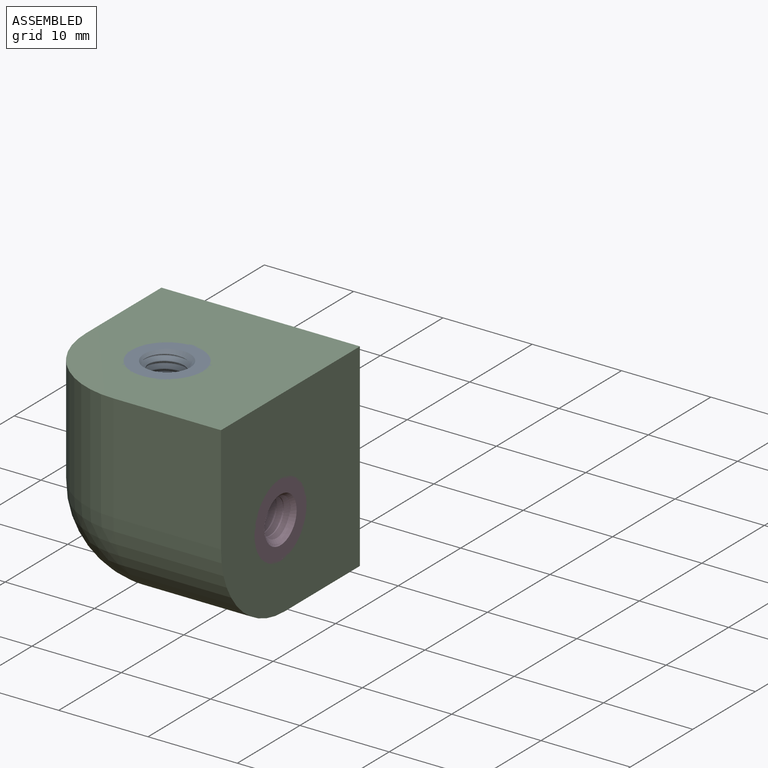
[diagram: assembled view]
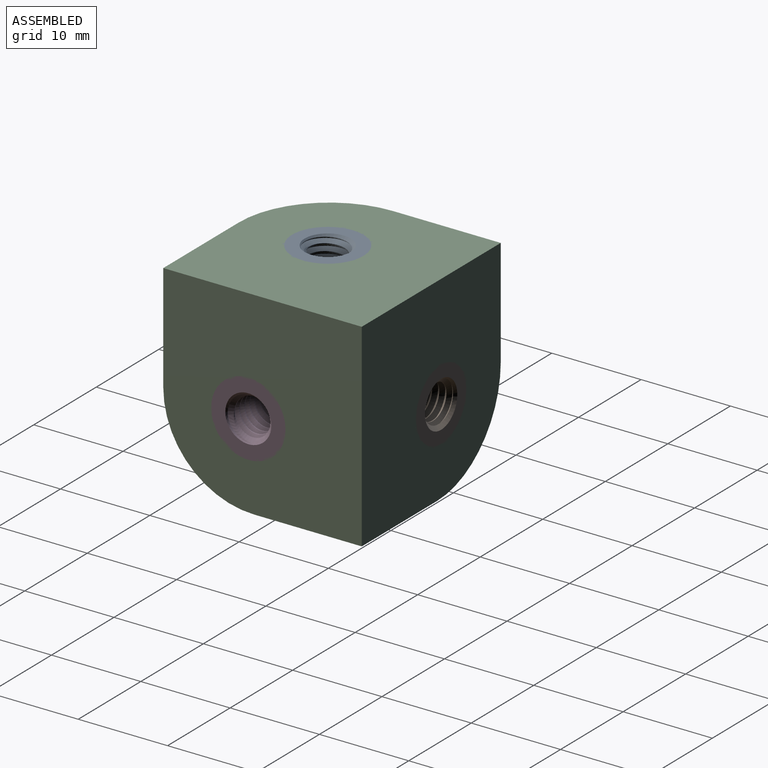
[diagram: assembled view, second angle]
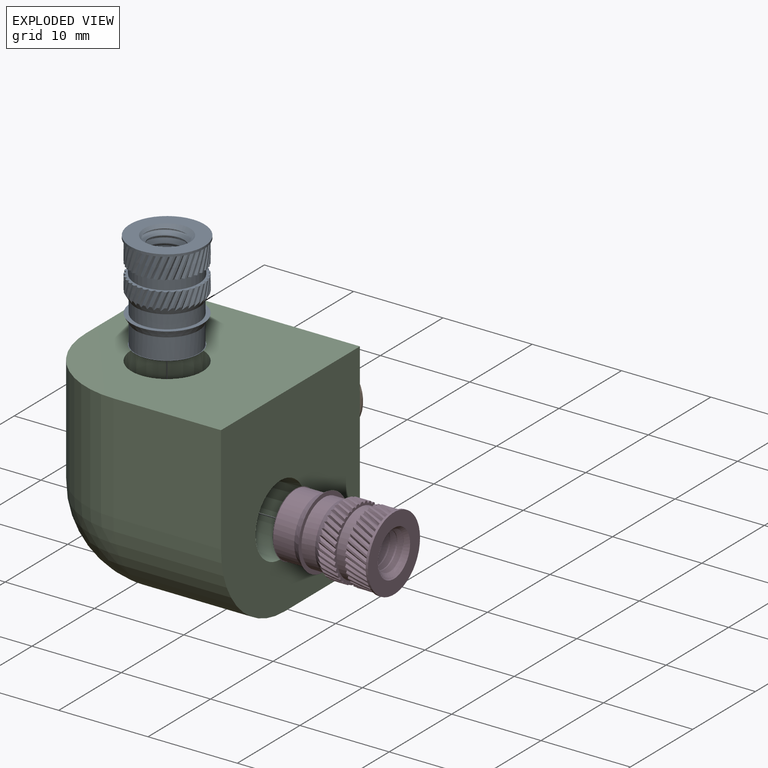
[diagram: exploded view]
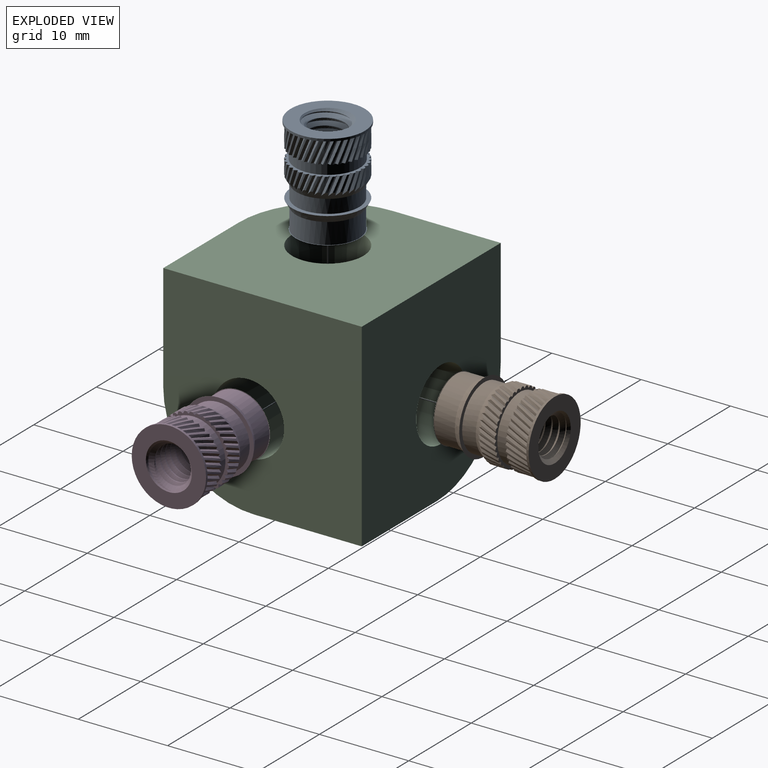
[diagram: exploded view, second angle]
ASSEMBLY  parts=4 mates=3
PART A: 237 faces, bbox 8.3x11.8x8.3 mm
  f0: cylinder r=4mm len=1.64mm, axis (0,1,0), area 0.4mm2, adj f37,f106,f152,f234
  f1: cylinder r=4mm len=1.64mm, axis (0,1,0), area 0.4mm2, adj f104,f107,f152,f234
  f2: cylinder r=4mm len=1.64mm, axis (0,1,0), area 0.4mm2, adj f102,f105,f152,f234
  f3: cylinder r=4mm len=1.64mm, axis (0,1,0), area 0.4mm2, adj f100,f103,f152,f234
  f4: cylinder r=4mm len=1.64mm, axis (0,1,0), area 0.4mm2, adj f98,f101,f152,f234
  f5: cylinder r=4mm len=1.64mm, axis (0,1,0), area 0.4mm2, adj f96,f99,f152,f234
  f6: cylinder r=4mm len=1.64mm, axis (0,1,0), area 0.4mm2, adj f94,f97,f152,f234
  f7: cylinder r=4mm len=1.64mm, axis (0,1,0), area 0.4mm2, adj f92,f95,f152,f234
  f8: cylinder r=4mm len=1.64mm, axis (0,1,0), area 0.4mm2, adj f90,f93,f152,f234
  f9: cylinder r=4mm len=1.64mm, axis (0,1,0), area 0.4mm2, adj f88,f91,f152,f234
  f10: cylinder r=4mm len=1.64mm, axis (0,1,0), area 0.4mm2, adj f86,f89,f152,f234
  f11: cylinder r=4mm len=1.64mm, axis (0,1,0), area 0.4mm2, adj f84,f87,f152,f234
  f12: cylinder r=4mm len=1.64mm, axis (0,1,0), area 0.4mm2, adj f82,f85,f152,f234
  f13: cylinder r=4mm len=1.64mm, axis (0,1,0), area 0.4mm2, adj f80,f83,f152,f234
  f14: cylinder r=4mm len=1.64mm, axis (0,1,0), area 0.4mm2, adj f78,f81,f152,f234
  f15: cylinder r=4mm len=1.64mm, axis (0,1,0), area 0.4mm2, adj f76,f79,f152,f234
  f16: cylinder r=4mm len=1.64mm, axis (0,1,0), area 0.4mm2, adj f74,f77,f152,f234
  f17: cylinder r=4mm len=1.64mm, axis (0,1,0), area 0.4mm2, adj f72,f75,f152,f234
  f18: cylinder r=4mm len=1.64mm, axis (0,1,0), area 0.4mm2, adj f70,f73,f152,f234
  f19: cylinder r=4mm len=1.64mm, axis (0,1,0), area 0.4mm2, adj f68,f71,f152,f234
  f20: cylinder r=4mm len=1.64mm, axis (0,1,0), area 0.4mm2, adj f66,f69,f152,f234
  f21: cylinder r=4mm len=1.64mm, axis (0,1,0), area 0.4mm2, adj f64,f67,f152,f234
  f22: cylinder r=4mm len=1.64mm, axis (0,1,0), area 0.4mm2, adj f62,f65,f152,f234
  f23: cylinder r=4mm len=1.64mm, axis (0,1,0), area 0.4mm2, adj f60,f63,f152,f234
  f24: cylinder r=4mm len=1.64mm, axis (0,1,0), area 0.4mm2, adj f58,f61,f152,f234
  f25: cylinder r=4mm len=1.64mm, axis (0,1,0), area 0.4mm2, adj f56,f59,f152,f234
  f26: cylinder r=4mm len=1.64mm, axis (0,1,0), area 0.4mm2, adj f54,f57,f152,f234
  f27: cylinder r=4mm len=1.64mm, axis (0,1,0), area 0.4mm2, adj f52,f55,f152,f234
  f28: cylinder r=4mm len=1.64mm, axis (0,1,0), area 0.4mm2, adj f50,f53,f152,f234
  f29: cylinder r=4mm len=1.64mm, axis (0,1,0), area 0.4mm2, adj f48,f51,f152,f234
  f30: cylinder r=4mm len=1.64mm, axis (0,1,0), area 0.4mm2, adj f46,f49,f152,f234
  f31: cylinder r=4mm len=1.64mm, axis (0,1,0), area 0.4mm2, adj f44,f47,f152,f234
  f32: cylinder r=4mm len=1.64mm, axis (0,1,0), area 0.4mm2, adj f42,f45,f152,f234
  f33: cylinder r=4mm len=1.64mm, axis (0,1,0), area 0.4mm2, adj f40,f43,f152,f234
  f34: cylinder r=4mm len=1.64mm, axis (0,1,0), area 0.4mm2, adj f38,f41,f152,f234
  f35: cylinder r=4mm len=1.64mm, axis (0,1,0), area 0.4mm2, adj f36,f39,f152,f234
  f36: bspline ~3.85x1.55mm, area 0.6mm2, adj f35,f37,f152,f234
  f37: bspline ~3.85x1.7mm, area 0.6mm2, adj f0,f36,f152,f234
  f38: bspline ~3.85x1.69mm, area 0.6mm2, adj f34,f39,f152,f234
  f39: bspline ~3.85x1.78mm, area 0.6mm2, adj f35,f38,f152,f234
  f40: bspline ~2.05x1.02mm, area 0.6mm2, adj f33,f41,f152,f234
  f41: bspline ~3.85x1.8mm, area 0.6mm2, adj f34,f40,f152,f234
  f42: bspline ~3.85x1.8mm, area 0.6mm2, adj f32,f43,f152,f234
  f43: bspline ~3.85x1.76mm, area 0.6mm2, adj f33,f42,f152,f234
  f44: bspline ~3.85x1.77mm, area 0.6mm2, adj f31,f45,f152,f234
  f45: bspline ~3.85x1.67mm, area 0.6mm2, adj f32,f44,f152,f234
  f46: bspline ~3.85x1.69mm, area 0.6mm2, adj f30,f47,f152,f234
  f47: bspline ~3.85x1.53mm, area 0.6mm2, adj f31,f46,f152,f234
  f48: bspline ~3.85x1.56mm, area 0.6mm2, adj f29,f49,f152,f234
  f49: bspline ~3.85x1.36mm, area 0.6mm2, adj f30,f48,f152,f234
  f50: bspline ~2.05x0.92mm, area 0.6mm2, adj f28,f51,f152,f234
  f51: bspline ~3.85x1.4mm, area 0.6mm2, adj f29,f50,f152,f234
  f52: bspline ~3.85x1.38mm, area 0.6mm2, adj f27,f53,f152,f234
  f53: bspline ~3.85x1.58mm, area 0.6mm2, adj f28,f52,f152,f234
  f54: bspline ~3.85x1.55mm, area 0.6mm2, adj f26,f55,f152,f234
  f55: bspline ~3.85x1.7mm, area 0.6mm2, adj f27,f54,f152,f234
  f56: bspline ~3.85x1.69mm, area 0.6mm2, adj f25,f57,f152,f234
  f57: bspline ~3.85x1.78mm, area 0.6mm2, adj f26,f56,f152,f234
  f58: bspline ~2.05x1.02mm, area 0.6mm2, adj f24,f59,f152,f234
  f59: bspline ~3.85x1.8mm, area 0.6mm2, adj f25,f58,f152,f234
  f60: bspline ~3.85x1.8mm, area 0.6mm2, adj f23,f61,f152,f234
  f61: bspline ~3.85x1.76mm, area 0.6mm2, adj f24,f60,f152,f234
  f62: bspline ~3.85x1.77mm, area 0.6mm2, adj f22,f63,f152,f234
  f63: bspline ~3.85x1.67mm, area 0.6mm2, adj f23,f62,f152,f234
  f64: bspline ~3.85x1.69mm, area 0.6mm2, adj f21,f65,f152,f234
  f65: bspline ~3.85x1.53mm, area 0.6mm2, adj f22,f64,f152,f234
  f66: bspline ~3.85x1.56mm, area 0.6mm2, adj f20,f67,f152,f234
  f67: bspline ~3.85x1.36mm, area 0.6mm2, adj f21,f66,f152,f234
  f68: bspline ~2.05x0.92mm, area 0.6mm2, adj f19,f69,f152,f234
  f69: bspline ~3.85x1.4mm, area 0.6mm2, adj f20,f68,f152,f234
  f70: bspline ~3.85x1.38mm, area 0.6mm2, adj f18,f71,f152,f234
  f71: bspline ~3.85x1.58mm, area 0.6mm2, adj f19,f70,f152,f234
  f72: bspline ~3.85x1.55mm, area 0.6mm2, adj f17,f73,f152,f234
  f73: bspline ~3.85x1.7mm, area 0.6mm2, adj f18,f72,f152,f234
  f74: bspline ~3.85x1.69mm, area 0.6mm2, adj f16,f75,f152,f234
  f75: bspline ~3.85x1.78mm, area 0.6mm2, adj f17,f74,f152,f234
  f76: bspline ~2.05x1.02mm, area 0.6mm2, adj f15,f77,f152,f234
  f77: bspline ~3.85x1.8mm, area 0.6mm2, adj f16,f76,f152,f234
  f78: bspline ~3.85x1.8mm, area 0.6mm2, adj f14,f79,f152,f234
  f79: bspline ~3.85x1.76mm, area 0.6mm2, adj f15,f78,f152,f234
  f80: bspline ~3.85x1.77mm, area 0.6mm2, adj f13,f81,f152,f234
  f81: bspline ~3.85x1.67mm, area 0.6mm2, adj f14,f80,f152,f234
  f82: bspline ~3.85x1.69mm, area 0.6mm2, adj f12,f83,f152,f234
  f83: bspline ~3.85x1.53mm, area 0.6mm2, adj f13,f82,f152,f234
  f84: bspline ~3.85x1.56mm, area 0.6mm2, adj f11,f85,f152,f234
  f85: bspline ~3.85x1.36mm, area 0.6mm2, adj f12,f84,f152,f234
  f86: bspline ~2.05x0.92mm, area 0.6mm2, adj f10,f87,f152,f234
  f87: bspline ~3.85x1.4mm, area 0.6mm2, adj f11,f86,f152,f234
  f88: bspline ~3.85x1.38mm, area 0.6mm2, adj f9,f89,f152,f234
  f89: bspline ~3.85x1.58mm, area 0.6mm2, adj f10,f88,f152,f234
  f90: bspline ~3.85x1.55mm, area 0.6mm2, adj f8,f91,f152,f234
  f91: bspline ~3.85x1.7mm, area 0.6mm2, adj f9,f90,f152,f234
  f92: bspline ~3.85x1.69mm, area 0.6mm2, adj f7,f93,f152,f234
  f93: bspline ~3.85x1.78mm, area 0.6mm2, adj f8,f92,f152,f234
  f94: bspline ~2.05x1.02mm, area 0.6mm2, adj f6,f95,f152,f234
  f95: bspline ~3.85x1.8mm, area 0.6mm2, adj f7,f94,f152,f234
  f96: bspline ~3.85x1.8mm, area 0.6mm2, adj f5,f97,f152,f234
  f97: bspline ~3.85x1.76mm, area 0.6mm2, adj f6,f96,f152,f234
  f98: bspline ~3.85x1.77mm, area 0.6mm2, adj f4,f99,f152,f234
  f99: bspline ~3.85x1.67mm, area 0.6mm2, adj f5,f98,f152,f234
  f100: bspline ~3.85x1.69mm, area 0.6mm2, adj f3,f101,f152,f234
  f101: bspline ~3.85x1.53mm, area 0.6mm2, adj f4,f100,f152,f234
  f102: bspline ~3.85x1.56mm, area 0.6mm2, adj f2,f103,f152,f234
  f103: bspline ~3.85x1.36mm, area 0.6mm2, adj f3,f102,f152,f234
  f104: bspline ~2.05x0.92mm, area 0.6mm2, adj f1,f105,f152,f234
  f105: bspline ~3.85x1.4mm, area 0.6mm2, adj f2,f104,f152,f234
  f106: bspline ~3.85x1.38mm, area 0.6mm2, adj f0,f107,f152,f234
  f107: bspline ~3.85x1.58mm, area 0.6mm2, adj f1,f106,f152,f234
  f108: cylinder r=4mm len=2.45mm, axis (0,1,0), area 0.6mm2, adj f150,f163,f232,f235
  f109: cylinder r=4mm len=2.45mm, axis (0,1,0), area 0.6mm2, adj f150,f230,f233,f235
  f110: cylinder r=4mm len=2.45mm, axis (0,1,0), area 0.6mm2, adj f150,f228,f231,f235
  f111: cylinder r=4mm len=2.45mm, axis (0,1,0), area 0.6mm2, adj f150,f226,f229,f235
  f112: cylinder r=4mm len=2.45mm, axis (0,1,0), area 0.6mm2, adj f150,f224,f227,f235
  f113: cylinder r=4mm len=2.45mm, axis (0,1,0), area 0.6mm2, adj f150,f222,f225,f235
  f114: cylinder r=4mm len=2.45mm, axis (0,1,0), area 0.6mm2, adj f150,f220,f223,f235
  f115: cylinder r=4mm len=2.45mm, axis (0,1,0), area 0.6mm2, adj f150,f218,f221,f235
  f116: cylinder r=4mm len=2.45mm, axis (0,1,0), area 0.6mm2, adj f150,f216,f219,f235
  f117: cylinder r=4mm len=2.45mm, axis (0,1,0), area 0.6mm2, adj f150,f214,f217,f235
  f118: cylinder r=4mm len=2.45mm, axis (0,1,0), area 0.6mm2, adj f150,f212,f215,f235
  f119: cylinder r=4mm len=2.45mm, axis (0,1,0), area 0.6mm2, adj f150,f210,f213,f235
  f120: cylinder r=4mm len=2.45mm, axis (0,1,0), area 0.6mm2, adj f150,f208,f211,f235
  f121: cylinder r=4mm len=2.45mm, axis (0,1,0), area 0.6mm2, adj f150,f206,f209,f235
  f122: cylinder r=4mm len=2.45mm, axis (0,1,0), area 0.6mm2, adj f150,f204,f207,f235
  f123: cylinder r=4mm len=2.45mm, axis (0,1,0), area 0.6mm2, adj f150,f202,f205,f235
  f124: cylinder r=4mm len=2.45mm, axis (0,1,0), area 0.6mm2, adj f150,f200,f203,f235
  f125: cylinder r=4mm len=2.45mm, axis (0,1,0), area 0.6mm2, adj f150,f198,f201,f235
  f126: cylinder r=4mm len=2.45mm, axis (0,1,0), area 0.6mm2, adj f150,f196,f199,f235
  f127: cylinder r=4mm len=2.45mm, axis (0,1,0), area 0.6mm2, adj f150,f194,f197,f235
  f128: cylinder r=4mm len=2.45mm, axis (0,1,0), area 0.6mm2, adj f150,f192,f195,f235
  f129: cylinder r=4mm len=2.45mm, axis (0,1,0), area 0.6mm2, adj f150,f190,f193,f235
  f130: cylinder r=4mm len=2.45mm, axis (0,1,0), area 0.6mm2, adj f150,f188,f191,f235
  f131: cylinder r=4mm len=2.45mm, axis (0,1,0), area 0.6mm2, adj f150,f186,f189,f235
  f132: cylinder r=4mm len=2.45mm, axis (0,1,0), area 0.6mm2, adj f150,f184,f187,f235
  f133: cylinder r=4mm len=2.45mm, axis (0,1,0), area 0.6mm2, adj f150,f182,f185,f235
  f134: cylinder r=4mm len=2.45mm, axis (0,1,0), area 0.6mm2, adj f150,f180,f183,f235
  f135: cylinder r=4mm len=2.45mm, axis (0,1,0), area 0.6mm2, adj f150,f178,f181,f235
  f136: cylinder r=4mm len=2.45mm, axis (0,1,0), area 0.6mm2, adj f150,f176,f179,f235
  f137: cylinder r=4mm len=2.45mm, axis (0,1,0), area 0.6mm2, adj f150,f174,f177,f235
  f138: cylinder r=4mm len=2.45mm, axis (0,1,0), area 0.6mm2, adj f150,f172,f175,f235
  f139: cylinder r=4mm len=2.45mm, axis (0,1,0), area 0.6mm2, adj f150,f170,f173,f235
  f140: cylinder r=4mm len=2.45mm, axis (0,1,0), area 0.6mm2, adj f150,f168,f171,f235
  f141: cylinder r=4mm len=2.45mm, axis (0,1,0), area 0.6mm2, adj f150,f166,f169,f235
  f142: cylinder r=4mm len=2.45mm, axis (0,1,0), area 0.6mm2, adj f150,f164,f167,f235
  f143: cylinder r=1.98mm len=9.9mm, axis (0,1,0), area 15.3mm2, adj f144,f146,f159,f161
  f144: cone r=1.98mm half-angle=45deg, axis (0,1,0), area 7.1mm2, adj f143,f151,f159,f160,f161
  f145: cone r=2.58mm half-angle=45deg, axis (0,-1,0), area 5.9mm2, adj f146,f155,f159,f160
  f146: cone r=2.58mm half-angle=45deg, axis (0,-1,0), area 1.3mm2, adj f143,f145,f159,f161
  f147: cylinder r=3.53mm len=7.06mm, axis (0,1,0), area 33.8mm2, adj f152,f153
  f148: cylinder r=4mm len=2.45mm, axis (0,1,0), area 0.6mm2, adj f150,f162,f165,f235
  f149: cylinder r=4.17mm len=8.33mm, axis (0,1,0), area 6.6mm2, adj f150,f151
  f150: plane 8.33x8.33mm, normal (0,-1,0), area 6.2mm2, adj f108,f109,f110,f111,f112,f113,f114,f115
  f151: plane 8.33x8.33mm, normal (0,1,0), area 33.6mm2, adj f144,f149
  f152: cone r=4mm half-angle=30deg, axis (0,1,0), area 18.4mm2, adj f0,f1,f2,f3,f4,f5,f6,f7
  f153: plane 8x8mm, normal (0,1,0), area 11.1mm2, adj f147,f154
  f154: cone r=4mm half-angle=30deg, axis (0,1,0), area 22.2mm2, adj f153,f158
  f155: plane 7.06x7.06mm, normal (0,-1,0), area 18.2mm2, adj f145,f156
  f156: cone r=3.6mm half-angle=45deg, axis (0,1,0), area 2.1mm2, adj f155,f157
  f157: plane 7.19x7.19mm, normal (0,1,0), area 1.5mm2, adj f156,f158
  f158: cylinder r=3.53mm len=7.06mm, axis (0,1,0), area 51.8mm2, adj f154,f157
  f159: bspline ~11.43x5mm, area 109.9mm2, adj f143,f144,f145,f146,f160
  f160: bspline ~11.3x5mm, area 21.5mm2, adj f144,f145,f159,f161
  f161: bspline ~11.43x5mm, area 110.3mm2, adj f143,f144,f146,f160
  f162: bspline ~2.45x1.19mm, area 0.8mm2, adj f148,f150,f163,f235
  f163: bspline ~2.45x1.24mm, area 0.8mm2, adj f108,f150,f162,f235
  f164: bspline ~2.45x1.23mm, area 0.8mm2, adj f142,f150,f165,f235
  f165: bspline ~2.45x1.21mm, area 0.8mm2, adj f148,f150,f164,f235
  f166: bspline ~2.45x1.24mm, area 0.8mm2, adj f141,f150,f167,f235
  f167: bspline ~4.28x1.92mm, area 0.8mm2, adj f142,f150,f166,f235
  f168: bspline ~4.28x1.92mm, area 0.8mm2, adj f140,f150,f169,f235
  f169: bspline ~2.45x1.05mm, area 0.8mm2, adj f141,f150,f168,f235
  f170: bspline ~4.28x1.82mm, area 0.8mm2, adj f139,f150,f171,f235
  f171: bspline ~4.28x1.66mm, area 0.8mm2, adj f140,f150,f170,f235
  f172: bspline ~4.28x1.67mm, area 0.8mm2, adj f138,f150,f173,f235
  f173: bspline ~2.45x0.97mm, area 0.8mm2, adj f139,f150,f172,f235
  f174: bspline ~4.28x1.46mm, area 0.8mm2, adj f137,f150,f175,f235
  f175: bspline ~4.28x1.56mm, area 0.8mm2, adj f138,f150,f174,f235
  f176: bspline ~2.45x0.99mm, area 0.8mm2, adj f136,f150,f177,f235
  f177: bspline ~2.45x1.18mm, area 0.8mm2, adj f137,f150,f176,f235
  f178: bspline ~4.28x1.73mm, area 0.8mm2, adj f135,f150,f179,f235
  f179: bspline ~4.28x1.87mm, area 0.8mm2, adj f136,f150,f178,f235
  f180: bspline ~4.28x1.87mm, area 0.8mm2, adj f134,f150,f181,f235
  f181: bspline ~2.45x1.24mm, area 0.8mm2, adj f135,f150,f180,f235
  f182: bspline ~2.45x1.23mm, area 0.8mm2, adj f133,f150,f183,f235
  f183: bspline ~2.45x1.21mm, area 0.8mm2, adj f134,f150,f182,f235
  f184: bspline ~2.45x1.24mm, area 0.8mm2, adj f132,f150,f185,f235
  f185: bspline ~4.28x1.92mm, area 0.8mm2, adj f133,f150,f184,f235
  f186: bspline ~4.28x1.92mm, area 0.8mm2, adj f131,f150,f187,f235
  f187: bspline ~2.45x1.05mm, area 0.8mm2, adj f132,f150,f186,f235
  f188: bspline ~4.28x1.82mm, area 0.8mm2, adj f130,f150,f189,f235
  f189: bspline ~4.28x1.66mm, area 0.8mm2, adj f131,f150,f188,f235
  f190: bspline ~4.28x1.67mm, area 0.8mm2, adj f129,f150,f191,f235
  f191: bspline ~2.45x0.97mm, area 0.8mm2, adj f130,f150,f190,f235
  f192: bspline ~4.28x1.46mm, area 0.8mm2, adj f128,f150,f193,f235
  f193: bspline ~4.28x1.56mm, area 0.8mm2, adj f129,f150,f192,f235
  f194: bspline ~2.45x0.99mm, area 0.8mm2, adj f127,f150,f195,f235
  f195: bspline ~2.45x1.18mm, area 0.8mm2, adj f128,f150,f194,f235
  f196: bspline ~4.28x1.73mm, area 0.8mm2, adj f126,f150,f197,f235
  f197: bspline ~4.28x1.87mm, area 0.8mm2, adj f127,f150,f196,f235
  f198: bspline ~4.28x1.87mm, area 0.8mm2, adj f125,f150,f199,f235
  f199: bspline ~2.45x1.24mm, area 0.8mm2, adj f126,f150,f198,f235
  f200: bspline ~2.45x1.23mm, area 0.8mm2, adj f124,f150,f201,f235
  f201: bspline ~2.45x1.21mm, area 0.8mm2, adj f125,f150,f200,f235
  f202: bspline ~2.45x1.24mm, area 0.8mm2, adj f123,f150,f203,f235
  f203: bspline ~4.28x1.92mm, area 0.8mm2, adj f124,f150,f202,f235
  f204: bspline ~4.28x1.92mm, area 0.8mm2, adj f122,f150,f205,f235
  f205: bspline ~2.45x1.05mm, area 0.8mm2, adj f123,f150,f204,f235
  f206: bspline ~4.28x1.82mm, area 0.8mm2, adj f121,f150,f207,f235
  f207: bspline ~4.28x1.66mm, area 0.8mm2, adj f122,f150,f206,f235
  f208: bspline ~4.28x1.67mm, area 0.8mm2, adj f120,f150,f209,f235
  f209: bspline ~2.45x0.97mm, area 0.8mm2, adj f121,f150,f208,f235
  f210: bspline ~4.28x1.46mm, area 0.8mm2, adj f119,f150,f211,f235
  f211: bspline ~4.28x1.56mm, area 0.8mm2, adj f120,f150,f210,f235
  f212: bspline ~2.45x0.99mm, area 0.8mm2, adj f118,f150,f213,f235
  f213: bspline ~2.45x1.18mm, area 0.8mm2, adj f119,f150,f212,f235
  f214: bspline ~4.28x1.73mm, area 0.8mm2, adj f117,f150,f215,f235
  f215: bspline ~4.28x1.87mm, area 0.8mm2, adj f118,f150,f214,f235
  f216: bspline ~2.45x1.19mm, area 0.8mm2, adj f116,f150,f217,f235
  f217: bspline ~2.45x1.24mm, area 0.8mm2, adj f117,f150,f216,f235
  f218: bspline ~2.45x1.23mm, area 0.8mm2, adj f115,f150,f219,f235
  f219: bspline ~2.45x1.21mm, area 0.8mm2, adj f116,f150,f218,f235
  f220: bspline ~2.45x1.24mm, area 0.8mm2, adj f114,f150,f221,f235
  f221: bspline ~4.28x1.92mm, area 0.8mm2, adj f115,f150,f220,f235
  f222: bspline ~4.28x1.92mm, area 0.8mm2, adj f113,f150,f223,f235
  f223: bspline ~2.45x1.05mm, area 0.8mm2, adj f114,f150,f222,f235
  f224: bspline ~4.28x1.82mm, area 0.8mm2, adj f112,f150,f225,f235
  f225: bspline ~4.28x1.66mm, area 0.8mm2, adj f113,f150,f224,f235
  f226: bspline ~4.28x1.67mm, area 0.8mm2, adj f111,f150,f227,f235
  f227: bspline ~2.45x0.97mm, area 0.8mm2, adj f112,f150,f226,f235
  f228: bspline ~4.28x1.46mm, area 0.8mm2, adj f110,f150,f229,f235
  f229: bspline ~4.28x1.56mm, area 0.8mm2, adj f111,f150,f228,f235
  f230: bspline ~2.45x0.99mm, area 0.8mm2, adj f109,f150,f231,f235
  f231: bspline ~2.45x1.18mm, area 0.8mm2, adj f110,f150,f230,f235
  f232: bspline ~4.28x1.73mm, area 0.8mm2, adj f108,f150,f233,f235
  f233: bspline ~4.28x1.87mm, area 0.8mm2, adj f109,f150,f232,f235
  f234: plane 8x8mm, normal (0,1,0), area 7.7mm2, adj f0,f1,f2,f3,f4,f5,f6,f7
  f235: plane 8x8mm, normal (0,-1,0), area 7.7mm2, adj f108,f109,f110,f111,f112,f113,f114,f115
  f236: cylinder r=3.6mm len=7.19mm, axis (0,1,0), area 27.1mm2, adj f234,f235
PART B: same geometry as A
PART C: 20 faces, bbox 22.2x22.2x22.2 mm
  f0: plane 0.39x0.39mm, normal (1,0,0), area 0.1mm2, adj f1,f16,f17
  f1: cone r=3.55mm half-angle=2.3deg, axis (1,0,0), area 247.8mm2, adj f0,f3,f7,f11,f16,f17
  f2: plane 0.39x0.39mm, normal (0,1,0), area 0.1mm2, adj f3,f16,f19
  f3: cone r=3.55mm half-angle=2.3deg, axis (0,1,0), area 247.8mm2, adj f1,f2,f8,f11,f16,f19
  f4: plane 0.39x0.39mm, normal (0,0,1), area 0.1mm2, adj f11,f17,f19
  f5: plane 12.07x12.07mm, normal (-1,0,0), area 145.6mm2, adj f8,f9,f13,f15
  f6: plane 12.07x12.07mm, normal (0,-1,0), area 145.6mm2, adj f7,f9,f12,f15
  f7: plane 22.23x22.23mm, normal (1,0,0), area 421.5mm2, adj f1,f6,f8,f9,f10,f12
  f8: plane 22.23x22.23mm, normal (0,1,0), area 421.5mm2, adj f3,f5,f7,f9,f10,f13
  f9: plane 22.23x22.23mm, normal (0,0,1), area 421.5mm2, adj f5,f6,f7,f8,f11,f15
  f10: plane 12.07x12.07mm, normal (0,0,-1), area 145.6mm2, adj f7,f8,f12,f13
  f11: cone r=3.55mm half-angle=2.3deg, axis (0,0,1), area 247.8mm2, adj f1,f3,f4,f9,f17,f19
  f12: cylinder r=10.16mm len=12.07mm, axis (1,0,0), area 192.5mm2, adj f6,f7,f10,f14
  f13: cylinder r=10.16mm len=12.07mm, axis (0,-1,0), area 192.5mm2, adj f5,f8,f10,f14
  f14: sphere r=10.16mm, area 162.1mm2, adj f12,f13,f15
  f15: cylinder r=10.16mm len=12.07mm, axis (0,0,1), area 192.5mm2, adj f5,f6,f9,f14
  f16: cylinder r=3.81mm len=3.81mm, axis (0,0,1), area 6.1mm2, adj f0,f1,f2,f3,f18
  f17: cylinder r=3.81mm len=3.81mm, axis (0,1,0), area 6.1mm2, adj f0,f1,f4,f11,f18
  f18: sphere r=3.81mm, area 22.8mm2, adj f16,f17,f19
  f19: cylinder r=3.81mm len=3.81mm, axis (-1,0,0), area 6.1mm2, adj f2,f3,f4,f11,f18
PART D: same geometry as A
PLACE A rot(axis=(1,0,0),90deg) t=(-7.33,-2.2,31.28)mm
PLACE B t=(-7.33,10.5,18.58)mm
PLACE C t=(-20.03,-14.9,5.88)mm
PLACE D rot(axis=(0.58,0.58,-0.58),120deg) t=(5.37,-2.2,18.58)mm
MATE fastened A.f0 <-> C.f11  axis (0,0,1) through (-7.33,-2.2,31.28)mm
MATE fastened D.f0 <-> C.f1  axis (1,0,0) through (5.37,-2.2,18.58)mm
MATE fastened B.f0 <-> C.f3  axis (0,1,0) through (-7.33,10.5,18.58)mm
